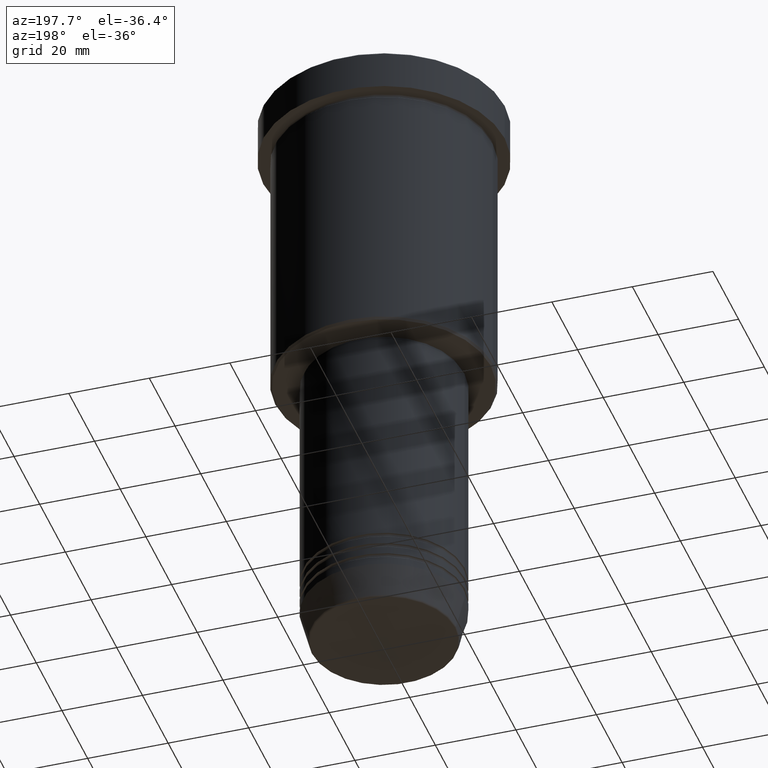
[diagram: clean part render]
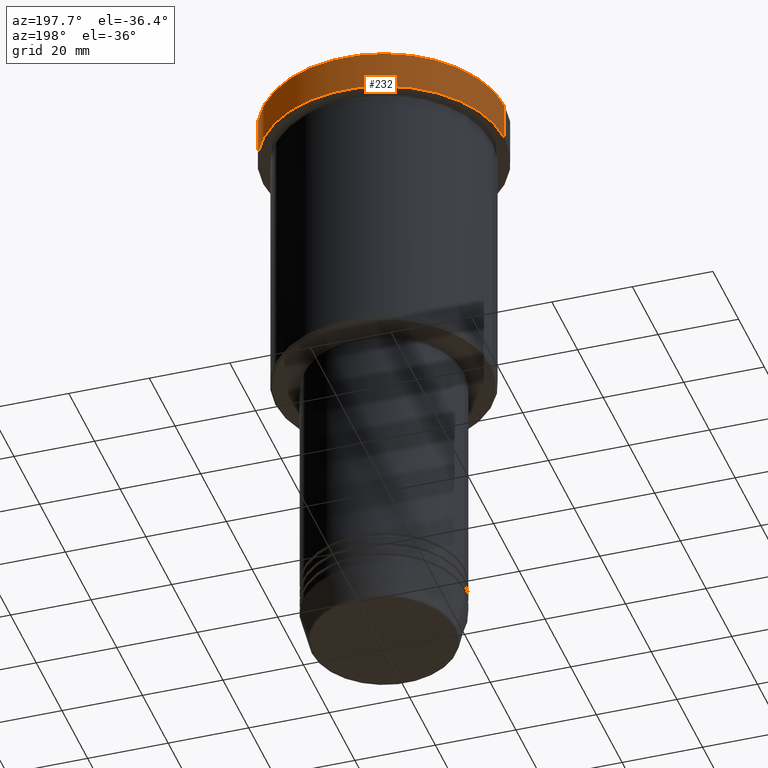
[diagram: same view with one face highlighted and labeled with its STEP entity id]
A machine part, auxiliary view. The second image highlights one B-rep face of the part: STEP entity #232.
In plain terms, the highlighted cylindrical surface (partial cylindrical patch) has radius 30 mm, axis along (-0, -0, 1).
Its self-contained STEP definition (entity closure, byte-faithful):
#18 = DIRECTION ( 'NONE',  ( 0.000000000000000000, 0.000000000000000000, -1.000000000000000000 ) ) ;
#27 = ORIENTED_EDGE ( 'NONE', *, *, #789, .T. ) ;
#56 = DIRECTION ( 'NONE',  ( -0.000000000000000000, -0.000000000000000000, 1.000000000000000000 ) ) ;
#75 = VERTEX_POINT ( 'NONE', #309 ) ;
#95 = CIRCLE ( 'NONE', #1039, 30.00000000000000000 ) ;
#120 = DIRECTION ( 'NONE',  ( -0.000000000000000000, -0.000000000000000000, 1.000000000000000000 ) ) ;
#231 = CARTESIAN_POINT ( 'NONE',  ( -30.00000000000000000, 3.673940397442059178E-15, 0.000000000000000000 ) ) ;
#232 = ADVANCED_FACE ( 'NONE', ( #370 ), #892, .T. ) ;
#236 = DIRECTION ( 'NONE',  ( 1.000000000000000000, 0.000000000000000000, 0.000000000000000000 ) ) ;
#271 = DIRECTION ( 'NONE',  ( -0.000000000000000000, -0.000000000000000000, 1.000000000000000000 ) ) ;
#299 = VECTOR ( 'NONE', #120, 1000.000000000000000 ) ;
#307 = ORIENTED_EDGE ( 'NONE', *, *, #762, .F. ) ;
#309 = CARTESIAN_POINT ( 'NONE',  ( -30.00000000000000000, 3.673940397442059178E-15, -0.5000000000000073275 ) ) ;
#328 = CARTESIAN_POINT ( 'NONE',  ( -30.00000000000000000, 3.673940397442059178E-15, -9.999999999999992895 ) ) ;
#358 = CARTESIAN_POINT ( 'NONE',  ( 0.000000000000000000, 0.000000000000000000, 0.000000000000000000 ) ) ;
#370 = FACE_OUTER_BOUND ( 'NONE', #1130, .T. ) ;
#379 = EDGE_CURVE ( 'NONE', #778, #75, #860, .T. ) ;
#394 = LINE ( 'NONE', #748, #299 ) ;
#507 = EDGE_CURVE ( 'NONE', #746, #778, #775, .T. ) ;
#690 = AXIS2_PLACEMENT_3D ( 'NONE', #358, #700, #1074 ) ;
#700 = DIRECTION ( 'NONE',  ( -0.000000000000000000, -0.000000000000000000, 1.000000000000000000 ) ) ;
#746 = VERTEX_POINT ( 'NONE', #1049 ) ;
#748 = CARTESIAN_POINT ( 'NONE',  ( 30.00000000000000000, 0.000000000000000000, 0.000000000000000000 ) ) ;
#762 = EDGE_CURVE ( 'NONE', #746, #821, #394, .T. ) ;
#775 = CIRCLE ( 'NONE', #807, 30.00000000000000000 ) ;
#778 = VERTEX_POINT ( 'NONE', #328 ) ;
#789 = EDGE_CURVE ( 'NONE', #75, #821, #95, .T. ) ;
#807 = AXIS2_PLACEMENT_3D ( 'NONE', #877, #271, #886 ) ;
#821 = VERTEX_POINT ( 'NONE', #952 ) ;
#838 = CARTESIAN_POINT ( 'NONE',  ( 0.000000000000000000, 0.000000000000000000, -0.5000000000000073275 ) ) ;
#860 = LINE ( 'NONE', #231, #1016 ) ;
#877 = CARTESIAN_POINT ( 'NONE',  ( 0.000000000000000000, 0.000000000000000000, -9.999999999999992895 ) ) ;
#886 = DIRECTION ( 'NONE',  ( 1.000000000000000000, 0.000000000000000000, 0.000000000000000000 ) ) ;
#892 = CYLINDRICAL_SURFACE ( 'NONE', #690, 30.00000000000000000 ) ;
#902 = ORIENTED_EDGE ( 'NONE', *, *, #379, .T. ) ;
#952 = CARTESIAN_POINT ( 'NONE',  ( 30.00000000000000000, 0.000000000000000000, -0.5000000000000073275 ) ) ;
#1016 = VECTOR ( 'NONE', #56, 1000.000000000000000 ) ;
#1039 = AXIS2_PLACEMENT_3D ( 'NONE', #838, #18, #236 ) ;
#1049 = CARTESIAN_POINT ( 'NONE',  ( 30.00000000000000000, 0.000000000000000000, -9.999999999999992895 ) ) ;
#1074 = DIRECTION ( 'NONE',  ( 1.000000000000000000, 0.000000000000000000, 0.000000000000000000 ) ) ;
#1121 = ORIENTED_EDGE ( 'NONE', *, *, #507, .T. ) ;
#1130 = EDGE_LOOP ( 'NONE', ( #1121, #902, #27, #307 ) ) ;